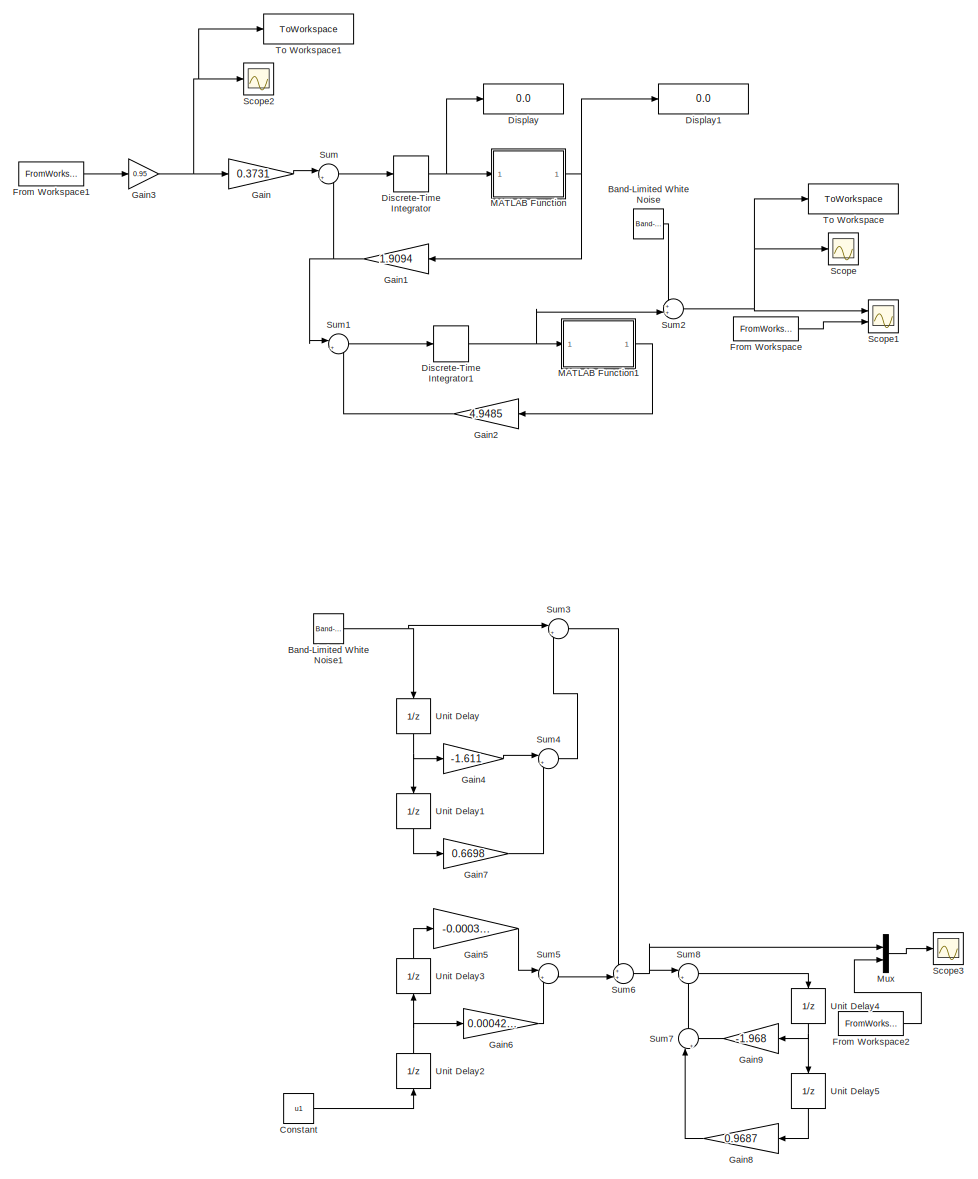
[diagram: root canvas - part 1/1, most of the canvas]
MODEL slx_776f64d64254
KIND model
CONFIG AbsTol = auto
CONFIG EnableMultiTasking = off
CONFIG FixedStep = auto
CONFIG MaxStep = auto
CONFIG MinStep = auto
CONFIG RelTol = 1e-3
CONFIG SampleTimeConstraint = Unconstrained
CONFIG SolverName = VariableStepAuto
CONFIG StartTime = 0.0
CONFIG StopTime = 600
BLOCK [Reference] Band-Limited White Noise  REF=simulink/Sources/Band-Limited
White Noise
  Ports = [0, 1]
  SourceBlock = simulink/Sources/Band-Limited\nWhite Noise
  SourceProductBaseCode = SL
  SourceType = Band-Limited White Noise.
BLOCK [Reference] Band-Limited White Noise1  REF=simulink/Sources/Band-Limited
White Noise
  Commented = on
  Ports = [0, 1]
  SourceBlock = simulink/Sources/Band-Limited\nWhite Noise
  SourceProductBaseCode = SL
  SourceType = Band-Limited White Noise.
BLOCK [Constant] Constant
  Commented = on
  Value = u1
BLOCK [DiscreteIntegrator] Discrete-Time Integrator
  ICPrevOutput = DiscIntNeverNeededParam
  ICPrevScaledInput = DiscIntNeverNeededParam
  InitialConditionSetting = Auto
  Ports = [1, 1]
  SampleTime = -1
  gainval = 0.234
BLOCK [DiscreteIntegrator] Discrete-Time Integrator1
  ICPrevOutput = DiscIntNeverNeededParam
  ICPrevScaledInput = DiscIntNeverNeededParam
  InitialConditionSetting = Auto
  Ports = [1, 1]
  SampleTime = -1
  gainval = 0.0856
BLOCK [Display] Display
  Decimation = 1
  Ports = [1]
BLOCK [Display] Display1
  Decimation = 1
  Ports = [1]
BLOCK [FromWorkspace] From Workspace
  VariableName = y_tst
BLOCK [FromWorkspace] From Workspace1
  VariableName = u_tst
BLOCK [FromWorkspace] From Workspace2
  Commented = on
  SampleTime = -1
  VariableName = y_tst
BLOCK [Gain] Gain
  Gain = 0.3731
BLOCK [Gain] Gain1
  Gain = 1.9094
  NameLocation = top
BLOCK [Gain] Gain2
  Gain = 4.9485
  NameLocation = top
BLOCK [Gain] Gain3
  Gain = 0.95
BLOCK [Gain] Gain4
  Commented = on
  Gain = -1.611
BLOCK [Gain] Gain5
  Commented = on
  Gain = -0.0003886
BLOCK [Gain] Gain6
  Commented = on
  Gain = 0.0004239
BLOCK [Gain] Gain7
  Commented = on
  Gain = 0.6698
BLOCK [Gain] Gain8
  Commented = on
  Gain = 0.9687
  NameLocation = top
BLOCK [Gain] Gain9
  Commented = on
  Gain = -1.968
  NameLocation = top
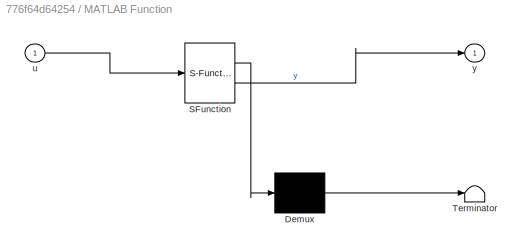
BLOCK [SubSystem] MATLAB Function
  ErrorFcn = Stateflow.Translate.translate
  PermitHierarchicalResolution = ExplicitOnly
  Ports = [1, 1]
  RequestExecContextInheritance = off
  SFBlockType = MATLAB Function
  TreatAsAtomicUnit = on
BLOCK [Demux] MATLAB Function/ Demux 
  Outputs = 1
  Ports = [1, 1]
BLOCK [S-Function] MATLAB Function/ SFunction 
  EnableBusSupport = on
  FunctionName = sf_sfun
  PortCounts = [1 2]
  Ports = [1, 2]
  SFcnIsStateOwnerBlock = off
  SFunctionDeploymentMode = off
  Tag = Stateflow S-Function 2
BLOCK [Terminator] MATLAB Function/ Terminator 
BLOCK [Inport] MATLAB Function/u
BLOCK [Outport] MATLAB Function/y
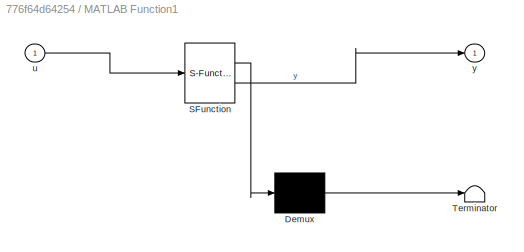
BLOCK [SubSystem] MATLAB Function1
  ErrorFcn = Stateflow.Translate.translate
  PermitHierarchicalResolution = ExplicitOnly
  Ports = [1, 1]
  RequestExecContextInheritance = off
  SFBlockType = MATLAB Function
  TreatAsAtomicUnit = on
BLOCK [Demux] MATLAB Function1/ Demux 
  Outputs = 1
  Ports = [1, 1]
BLOCK [S-Function] MATLAB Function1/ SFunction 
  EnableBusSupport = on
  FunctionName = sf_sfun
  PortCounts = [1 2]
  Ports = [1, 2]
  SFcnIsStateOwnerBlock = off
  SFunctionDeploymentMode = off
  Tag = Stateflow S-Function 1
BLOCK [Terminator] MATLAB Function1/ Terminator 
BLOCK [Inport] MATLAB Function1/u
BLOCK [Outport] MATLAB Function1/y
BLOCK [Mux] Mux
  Commented = on
  DisplayOption = bar
  Inputs = 2
  Ports = [2, 1]
BLOCK [Scope] Scope
  Floating = off
  NumInputPorts = 1
  Ports = [1]
  ScopeSpecificationString = Simulink.scopes.TimeScopeBlockCfg('CurrentConfiguration', extmgr.ConfigurationSet(extmgr.Configuration('Core','General UI',true),extmgr.Configuration('Core','Source UI',true),extmgr.Configuration('Sources','WiredSimulink',true),extmgr.Configuration('Visuals','Time Domain',true,'SerializedDisplays',{struct('MinYLimReal','-0.07514','MaxYLimReal','0.44797','YLabelReal','','MinYLimMag','0.00000','MaxY...<+1324ch>
BLOCK [Scope] Scope1
  Floating = off
  NumInputPorts = 2
  Ports = [2]
  ScopeSpecificationString = Simulink.scopes.TimeScopeBlockCfg('CurrentConfiguration', extmgr.ConfigurationSet(extmgr.Configuration('Core','General UI',true,'FigureColor',[1 1 1]),extmgr.Configuration('Core','Source UI',true),extmgr.Configuration('Sources','WiredSimulink',true,'DataLoggingVariableName','ScopeData1'),extmgr.Configuration('Visuals','Time Domain',true,'SerializedDisplays',{struct('MinYLimReal','-0.09615','MaxYLi...<+1696ch>
BLOCK [Scope] Scope2
  Floating = off
  NumInputPorts = 1
  Ports = [1]
  ScopeSpecificationString = Simulink.scopes.TimeScopeBlockCfg('CurrentConfiguration', extmgr.ConfigurationSet(extmgr.Configuration('Core','General UI',true),extmgr.Configuration('Core','Source UI',true),extmgr.Configuration('Sources','WiredSimulink',true,'DataLoggingVariableName','ScopeData1'),extmgr.Configuration('Visuals','Time Domain',true,'SerializedDisplays',{struct('MinYLimReal','-0.1','MaxYLimReal','8.9','YLabelReal',...<+1400ch>
BLOCK [Scope] Scope3
  Commented = on
  Floating = off
  NumInputPorts = 1
  Ports = [1]
  ScopeSpecificationString = Simulink.scopes.TimeScopeBlockCfg('CurrentConfiguration', extmgr.ConfigurationSet(extmgr.Configuration('Core','General UI',true),extmgr.Configuration('Core','Source UI',true),extmgr.Configuration('Sources','WiredSimulink',true,'DataLoggingVariableName','ScopeData1'),extmgr.Configuration('Visuals','Time Domain',true,'SerializedDisplays',{struct('MinYLimReal','-0.08811','MaxYLimReal','0.06724','YLab...<+2139ch>
BLOCK [Sum] Sum
  Inputs = |+-
  Ports = [2, 1]
BLOCK [Sum] Sum1
  Inputs = |+-
  Ports = [2, 1]
BLOCK [Sum] Sum2
  Inputs = ++|
  Ports = [2, 1]
BLOCK [Sum] Sum3
  Commented = on
  Inputs = |++
  Ports = [2, 1]
BLOCK [Sum] Sum4
  Commented = on
  Inputs = |++
  Ports = [2, 1]
BLOCK [Sum] Sum5
  Commented = on
  Inputs = |++
  Ports = [2, 1]
BLOCK [Sum] Sum6
  Commented = on
  Inputs = ++|
  Ports = [2, 1]
BLOCK [Sum] Sum7
  Commented = on
  Inputs = |++
  NameLocation = right
  Ports = [2, 1]
BLOCK [Sum] Sum8
  Commented = on
  Inputs = |+-
  Ports = [2, 1]
BLOCK [ToWorkspace] To Workspace
  FixptAsFi = on
  MaxDataPoints = inf
  Ports = [1]
  SampleTime = 0.2
  SaveFormat = Timeseries
  VariableName = y_prot
BLOCK [ToWorkspace] To Workspace1
  FixptAsFi = on
  MaxDataPoints = inf
  Ports = [1]
  SampleTime = 0.2
  SaveFormat = Timeseries
  VariableName = u_prot
BLOCK [UnitDelay] Unit Delay
  Commented = on
  HasFrameUpgradeWarning = on
  NameLocation = left
  SampleTime = -1
BLOCK [UnitDelay] Unit Delay1
  Commented = on
  HasFrameUpgradeWarning = on
  NameLocation = left
  SampleTime = -1
BLOCK [UnitDelay] Unit Delay2
  Commented = on
  HasFrameUpgradeWarning = on
  NameLocation = right
  SampleTime = -1
BLOCK [UnitDelay] Unit Delay3
  Commented = on
  HasFrameUpgradeWarning = on
  NameLocation = right
  SampleTime = -1
BLOCK [UnitDelay] Unit Delay4
  Commented = on
  HasFrameUpgradeWarning = on
  NameLocation = left
  SampleTime = -1
BLOCK [UnitDelay] Unit Delay5
  Commented = on
  HasFrameUpgradeWarning = on
  NameLocation = left
  SampleTime = -1
NET Band-Limited White Noise1:1 -> Sum3:1, Unit Delay:1
LINE Band-Limited White Noise:1 -> Sum2:1
LINE Constant:1 -> Unit Delay2:1
NET Discrete-Time Integrator1:1 -> MATLAB Function1:1, Sum2:2
NET Discrete-Time Integrator:1 -> Display:1, MATLAB Function:1
LINE From Workspace1:1 -> Gain3:1
LINE From Workspace2:1 -> Mux:2
LINE From Workspace:1 -> Scope1:2
NET Gain1:1 -> Sum1:1, Sum:2
LINE Gain2:1 -> Sum1:2
NET Gain3:1 -> Gain:1, Scope2:1, To Workspace1:1
LINE Gain4:1 -> Sum4:1
LINE Gain5:1 -> Sum5:1
LINE Gain6:1 -> Sum5:2
LINE Gain7:1 -> Sum4:2
LINE Gain8:1 -> Sum7:1
LINE Gain9:1 -> Sum7:2
LINE Gain:1 -> Sum:1
LINE MATLAB Function1:1 -> Gain2:1
NET MATLAB Function:1 -> Display1:1, Gain1:1
LINE Mux:1 -> Scope3:1
LINE Sum1:1 -> Discrete-Time Integrator1:1
NET Sum2:1 -> Scope1:1, Scope:1, To Workspace:1
LINE Sum3:1 -> Sum6:1
LINE Sum4:1 -> Sum3:2
LINE Sum5:1 -> Sum6:2
NET Sum6:1 -> Mux:1, Sum8:1
LINE Sum7:1 -> Sum8:2
LINE Sum8:1 -> Unit Delay4:1
LINE Sum:1 -> Discrete-Time Integrator:1
LINE Unit Delay1:1 -> Gain7:1
NET Unit Delay2:1 -> Gain6:1, Unit Delay3:1
LINE Unit Delay3:1 -> Gain5:1
NET Unit Delay4:1 -> Gain9:1, Unit Delay5:1
LINE Unit Delay5:1 -> Gain8:1
NET Unit Delay:1 -> Gain4:1, Unit Delay1:1
note: NET lines group one-source signal fan-out (src -> all destinations, sorted); 1:1 wires keep LINE
CHART MATLAB Function states=1 transitions=1
  STATE_LABEL 'eML_blk_kernel()'
  STATE_LABEL 'SCRIPT:\nfunction y = fcn(u)\nx = u(1);\ny = sqrt(x);\n'
CHART MATLAB Function1 states=1 transitions=1
  STATE_LABEL 'eML_blk_kernel()'
  STATE_LABEL 'SCRIPT:\nfunction y = fcn(u)\nx = u(1);\ny = sqrt(x);\n'
CHART  states=0 transitions=0
CHART  states=0 transitions=0
